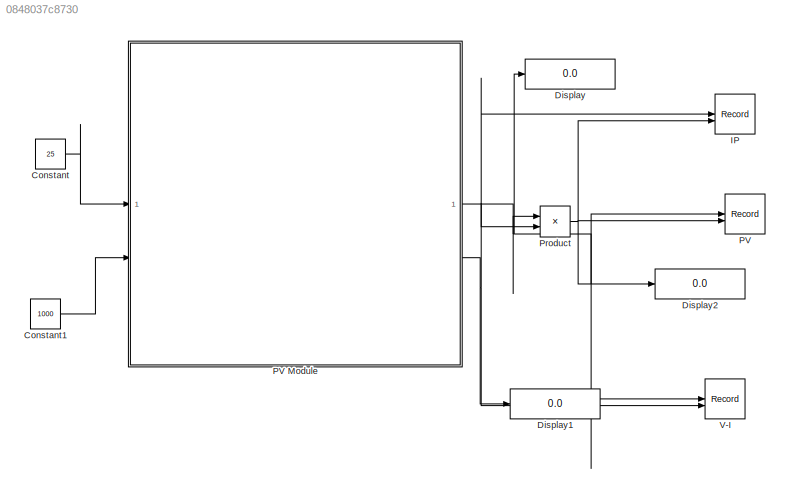
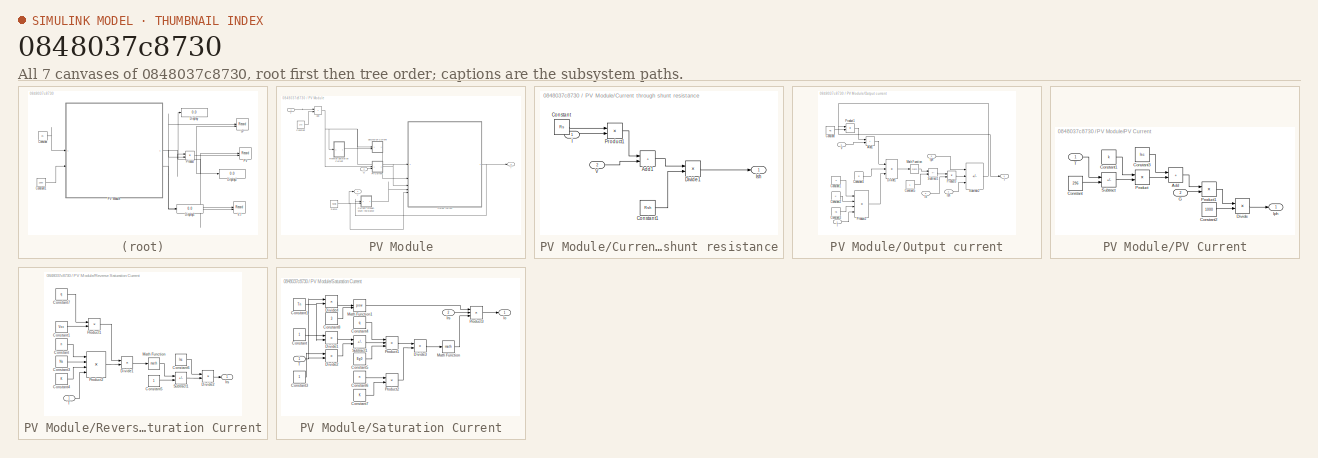
[diagram: thumbnail index - all 7 canvases of the model, root first then tree order]
MODEL slx_0848037c8730
KIND model
CONFIG AbsTol = auto
CONFIG EnableMultiTasking = off
CONFIG FixedStep = auto
CONFIG InitFcn = k=0.0032;\nq=1.6*10^-19;\nK=1.38*10^-23;\nn=1.3;\nEg0=1.38e-23;\nRs=0.221;\nRsh=415.405;\nTn=298;\nVoc=32.9;\nIsc=8.21;\nNs=54;
CONFIG MaxStep = auto
CONFIG MinStep = auto
CONFIG RelTol = 1e-3
CONFIG SampleTimeConstraint = Unconstrained
CONFIG SolverName = VariableStepAuto
CONFIG StartTime = 0.0
CONFIG StopTime = 3.3
BLOCK [Constant] Constant
  Value = 25
BLOCK [Constant] Constant1
  Value = 1000
BLOCK [Display] Display
  Decimation = 1
BLOCK [Display] Display1
  Decimation = 1
BLOCK [Display] Display2
  Decimation = 1
BLOCK [Record] IP
  CompatibilityTag = XY
  FileSettingsInternal = {"entries":[{"content":{"excelSettings":{"content":{},"type":"Streamout.ExcelSettings"}},"type":"Streamout.FileSettingStorage","uuid":""}],"packageUris":["http:\/\/schema.mathworks.com\/mf0\/streamout_blocks\/R2020a"],"version":"1.0"}  <repeated x3 — deduplicated; at blocks: IP, PV, V-I>
  Layout = [1 1]
  SignalsInternal = {"entries":[{"content":{"signals":[{"content":{"blockPath":[],"dimensions":[1],"domain":"","lineColor":"#77ac30","plots":[1],"port":1,"sid":[""],"signalID":35,"signalName":"PV Module:2"},"type":"RecordBlkView.Signal","uuid":""},{"content":{"blockPath":[],"dimensions":[1],"domain":"","lineColor":"#4dbeee","plots":[1],"port":2,"sid":[""],"signalID":39,"signalName":"Product"},"type":"RecordBlkView.Si...<+162ch>
  VisualizationBindings = {"xyplotplugin":{"info":[{"series":[{"bindingParametersList":[{"parameter":"X-Axis","signalID":35,"signalName":"PV Module:2"},{"parameter":"Y-Axis","signalID":39,"signalName":"Product"}],"seriesID":19355}],"subplotID":1}]}}
  st = -1
BLOCK [Record] PV
  CompatibilityTag = XY
  Layout = [1 1]
  SignalsInternal = {"entries":[{"content":{"signals":[{"content":{"blockPath":[],"dimensions":[1],"domain":"","lineColor":"#77ac30","plots":[1],"port":1,"sid":[""],"signalID":43,"signalName":"PV Module:1"},"type":"RecordBlkView.Signal","uuid":""},{"content":{"blockPath":[],"dimensions":[1],"domain":"","lineColor":"#4dbeee","plots":[1],"port":2,"sid":[""],"signalID":47,"signalName":"Product"},"type":"RecordBlkView.Si...<+162ch>
  VisualizationBindings = {"xyplotplugin":{"info":[{"series":[{"bindingParametersList":[{"parameter":"X-Axis","signalID":43,"signalName":"PV Module:1"},{"parameter":"Y-Axis","signalID":47,"signalName":"Product"}],"seriesID":25385}],"subplotID":1}]}}
  st = -1
BLOCK [SubSystem] PV Module
BLOCK [Sum] PV Module/Add
  IconShape = rectangular
BLOCK [Constant] PV Module/Constant
  Value = 273
BLOCK [SubSystem] PV Module/Current through shunt resistance
BLOCK [Sum] PV Module/Current through shunt resistance/Add1
  IconShape = rectangular
BLOCK [Constant] PV Module/Current through shunt resistance/Constant
  Value = Rs
BLOCK [Constant] PV Module/Current through shunt resistance/Constant1
  Value = Rsh
BLOCK [Product] PV Module/Current through shunt resistance/Divide1
  Inputs = */
BLOCK [Inport] PV Module/Current through shunt resistance/I
BLOCK [Outport] PV Module/Current through shunt resistance/Ish
BLOCK [Product] PV Module/Current through shunt resistance/Product1
BLOCK [Inport] PV Module/Current through shunt resistance/V
  Port = 2
BLOCK [Inport] PV Module/G
  Port = 2
BLOCK [Outport] PV Module/I
  Port = 2
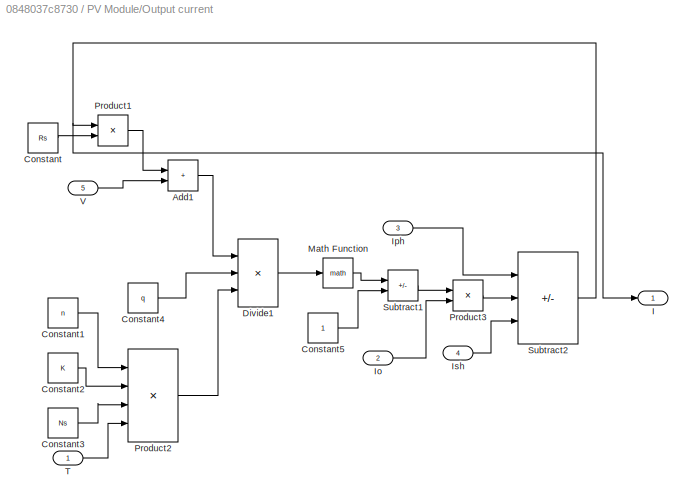
BLOCK [SubSystem] PV Module/Output current
BLOCK [Sum] PV Module/Output current/Add1
  IconShape = rectangular
BLOCK [Constant] PV Module/Output current/Constant
  Value = Rs
BLOCK [Constant] PV Module/Output current/Constant1
  Value = n
BLOCK [Constant] PV Module/Output current/Constant2
  Value = K
BLOCK [Constant] PV Module/Output current/Constant3
  Value = Ns
BLOCK [Constant] PV Module/Output current/Constant4
  Value = q
BLOCK [Constant] PV Module/Output current/Constant5
BLOCK [Product] PV Module/Output current/Divide1
  Inputs = **/
BLOCK [Outport] PV Module/Output current/I
BLOCK [Inport] PV Module/Output current/Io
  Port = 2
BLOCK [Inport] PV Module/Output current/Iph
  Port = 3
BLOCK [Inport] PV Module/Output current/Ish
  Port = 4
BLOCK [Math] PV Module/Output current/Math Function
BLOCK [Product] PV Module/Output current/Product1
BLOCK [Product] PV Module/Output current/Product2
  Inputs = 4
BLOCK [Product] PV Module/Output current/Product3
BLOCK [Sum] PV Module/Output current/Subtract1
  IconShape = rectangular
  Inputs = +-
BLOCK [Sum] PV Module/Output current/Subtract2
  IconShape = rectangular
  Inputs = +--
BLOCK [Inport] PV Module/Output current/T
BLOCK [Inport] PV Module/Output current/V
  Port = 5
BLOCK [SubSystem] PV Module/PV Current
BLOCK [Sum] PV Module/PV Current/Add
  IconShape = rectangular
BLOCK [Constant] PV Module/PV Current/Constant
  Value = 296
BLOCK [Constant] PV Module/PV Current/Constant1
  Value = k
BLOCK [Constant] PV Module/PV Current/Constant2
  Value = 1000
BLOCK [Constant] PV Module/PV Current/Constant3
  Value = Isc
BLOCK [Product] PV Module/PV Current/Divide
  Inputs = */
BLOCK [Inport] PV Module/PV Current/G
  Port = 2
BLOCK [Outport] PV Module/PV Current/Iph
BLOCK [Product] PV Module/PV Current/Product
BLOCK [Product] PV Module/PV Current/Product1
BLOCK [Sum] PV Module/PV Current/Subtract
  IconShape = rectangular
  Inputs = +-
BLOCK [Inport] PV Module/PV Current/T
BLOCK [Reference] PV Module/Ramp  REF=simulink/Sources/Ramp
  SourceBlock = simulink/Sources/Ramp
  SourceType = Ramp
BLOCK [SubSystem] PV Module/Reverse Saturation Current
BLOCK [Constant] PV Module/Reverse Saturation Current/Constant
  Value = n
BLOCK [Constant] PV Module/Reverse Saturation Current/Constant1
  Value = Voc
BLOCK [Constant] PV Module/Reverse Saturation Current/Constant3
  Value = Ns
BLOCK [Constant] PV Module/Reverse Saturation Current/Constant4
  Value = K
BLOCK [Constant] PV Module/Reverse Saturation Current/Constant5
BLOCK [Constant] PV Module/Reverse Saturation Current/Constant6
  Value = Isc
BLOCK [Constant] PV Module/Reverse Saturation Current/Constant7
  Value = q
BLOCK [Product] PV Module/Reverse Saturation Current/Divide1
  Inputs = */
BLOCK [Product] PV Module/Reverse Saturation Current/Divide2
  Inputs = */
BLOCK [Outport] PV Module/Reverse Saturation Current/Irs
BLOCK [Math] PV Module/Reverse Saturation Current/Math Function
BLOCK [Product] PV Module/Reverse Saturation Current/Product1
BLOCK [Product] PV Module/Reverse Saturation Current/Product2
  Inputs = 4
BLOCK [Sum] PV Module/Reverse Saturation Current/Subtract1
  IconShape = rectangular
  Inputs = +-
BLOCK [Inport] PV Module/Reverse Saturation Current/T
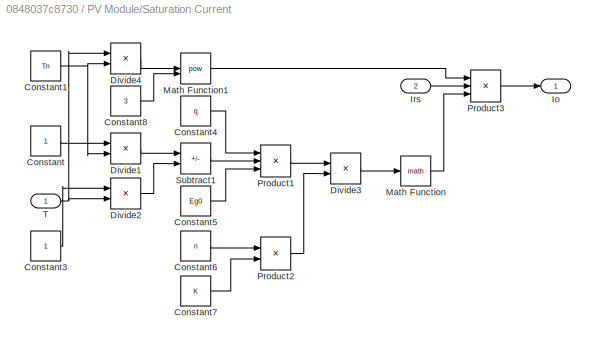
BLOCK [SubSystem] PV Module/Saturation Current
BLOCK [Constant] PV Module/Saturation Current/Constant
BLOCK [Constant] PV Module/Saturation Current/Constant1
  Value = Tn
BLOCK [Constant] PV Module/Saturation Current/Constant3
BLOCK [Constant] PV Module/Saturation Current/Constant4
  Value = q
BLOCK [Constant] PV Module/Saturation Current/Constant5
  Value = Eg0
BLOCK [Constant] PV Module/Saturation Current/Constant6
  Value = n
BLOCK [Constant] PV Module/Saturation Current/Constant7
  Value = K
BLOCK [Constant] PV Module/Saturation Current/Constant8
  Value = 3
BLOCK [Product] PV Module/Saturation Current/Divide1
  Inputs = */
BLOCK [Product] PV Module/Saturation Current/Divide2
  Inputs = */
BLOCK [Product] PV Module/Saturation Current/Divide3
  Inputs = */
BLOCK [Product] PV Module/Saturation Current/Divide4
  Inputs = */
BLOCK [Outport] PV Module/Saturation Current/Io
BLOCK [Inport] PV Module/Saturation Current/Irs
  Port = 2
BLOCK [Math] PV Module/Saturation Current/Math Function
BLOCK [Math] PV Module/Saturation Current/Math Function1
  Operator = pow
BLOCK [Product] PV Module/Saturation Current/Product1
  Inputs = 3
BLOCK [Product] PV Module/Saturation Current/Product2
BLOCK [Product] PV Module/Saturation Current/Product3
  Inputs = 3
BLOCK [Sum] PV Module/Saturation Current/Subtract1
  IconShape = rectangular
  Inputs = +-
BLOCK [Inport] PV Module/Saturation Current/T
BLOCK [Inport] PV Module/T
BLOCK [Outport] PV Module/V
BLOCK [Product] Product
BLOCK [Record] V-I
  CompatibilityTag = XY
  Layout = [1 1]
  SignalsInternal = {"entries":[{"content":{"signals":[{"content":{"blockPath":[],"dimensions":[1],"domain":"","lineColor":"#a2142f","plots":[1],"port":1,"sid":[""],"signalID":51,"signalName":"PV Module:1"},"type":"RecordBlkView.Signal","uuid":""},{"content":{"blockPath":[],"dimensions":[1],"domain":"","lineColor":"#139fff","plots":[1],"port":2,"sid":[""],"signalID":55,"signalName":"PV Module:2"},"type":"RecordBlkVie...<+166ch>
  VisualizationBindings = {"xyplotplugin":{"info":[{"series":[{"bindingParametersList":[{"parameter":"Y-Axis","signalID":55,"signalName":"PV Module:2"},{"parameter":"X-Axis","signalID":51,"signalName":"PV Module:1"}],"seriesID":21075}],"subplotID":1}]}}
  st = -1
LINE Constant1:1 -> PV Module:2
LINE Constant:1 -> PV Module:1
NET PV Module/Add:1 -> PV Module/Output current:1, PV Module/PV Current:1, PV Module/Reverse Saturation Current:1, PV Module/Saturation Current:1
LINE PV Module/Constant:1 -> PV Module/Add:2
LINE PV Module/Current through shunt resistance/Add1:1 -> PV Module/Current through shunt resistance/Divide1:1
LINE PV Module/Current through shunt resistance/Constant1:1 -> PV Module/Current through shunt resistance/Divide1:2
LINE PV Module/Current through shunt resistance/Constant:1 -> PV Module/Current through shunt resistance/Product1:1
LINE PV Module/Current through shunt resistance/Divide1:1 -> PV Module/Current through shunt resistance/Ish:1
LINE PV Module/Current through shunt resistance/I:1 -> PV Module/Current through shunt resistance/Product1:2
LINE PV Module/Current through shunt resistance/Product1:1 -> PV Module/Current through shunt resistance/Add1:1
LINE PV Module/Current through shunt resistance/V:1 -> PV Module/Current through shunt resistance/Add1:2
LINE PV Module/Current through shunt resistance:1 -> PV Module/Output current:4
LINE PV Module/G:1 -> PV Module/PV Current:2
LINE PV Module/Output current/Add1:1 -> PV Module/Output current/Divide1:1
LINE PV Module/Output current/Constant1:1 -> PV Module/Output current/Product2:1
LINE PV Module/Output current/Constant2:1 -> PV Module/Output current/Product2:2
LINE PV Module/Output current/Constant3:1 -> PV Module/Output current/Product2:3
LINE PV Module/Output current/Constant4:1 -> PV Module/Output current/Divide1:2
LINE PV Module/Output current/Constant5:1 -> PV Module/Output current/Subtract1:2
LINE PV Module/Output current/Constant:1 -> PV Module/Output current/Product1:2
LINE PV Module/Output current/Divide1:1 -> PV Module/Output current/Math Function:1
LINE PV Module/Output current/Io:1 -> PV Module/Output current/Product3:2
LINE PV Module/Output current/Iph:1 -> PV Module/Output current/Subtract2:1
LINE PV Module/Output current/Ish:1 -> PV Module/Output current/Subtract2:3
LINE PV Module/Output current/Math Function:1 -> PV Module/Output current/Subtract1:1
LINE PV Module/Output current/Product1:1 -> PV Module/Output current/Add1:1
LINE PV Module/Output current/Product2:1 -> PV Module/Output current/Divide1:3
LINE PV Module/Output current/Product3:1 -> PV Module/Output current/Subtract2:2
LINE PV Module/Output current/Subtract1:1 -> PV Module/Output current/Product3:1
NET PV Module/Output current/Subtract2:1 -> PV Module/Output current/I:1, PV Module/Output current/Product1:1
LINE PV Module/Output current/T:1 -> PV Module/Output current/Product2:4
LINE PV Module/Output current/V:1 -> PV Module/Output current/Add1:2
NET PV Module/Output current:1 -> PV Module/Current through shunt resistance:1, PV Module/I:1
LINE PV Module/PV Current/Add:1 -> PV Module/PV Current/Product1:1
LINE PV Module/PV Current/Constant1:1 -> PV Module/PV Current/Product:1
LINE PV Module/PV Current/Constant2:1 -> PV Module/PV Current/Divide:2
LINE PV Module/PV Current/Constant3:1 -> PV Module/PV Current/Add:1
LINE PV Module/PV Current/Constant:1 -> PV Module/PV Current/Subtract:2
LINE PV Module/PV Current/Divide:1 -> PV Module/PV Current/Iph:1
LINE PV Module/PV Current/G:1 -> PV Module/PV Current/Product1:2
LINE PV Module/PV Current/Product1:1 -> PV Module/PV Current/Divide:1
LINE PV Module/PV Current/Product:1 -> PV Module/PV Current/Add:2
LINE PV Module/PV Current/Subtract:1 -> PV Module/PV Current/Product:2
LINE PV Module/PV Current/T:1 -> PV Module/PV Current/Subtract:1
LINE PV Module/PV Current:1 -> PV Module/Output current:3
NET PV Module/Ramp:1 -> PV Module/Current through shunt resistance:2, PV Module/Output current:5, PV Module/V:1
LINE PV Module/Reverse Saturation Current/Constant1:1 -> PV Module/Reverse Saturation Current/Product1:2
LINE PV Module/Reverse Saturation Current/Constant3:1 -> PV Module/Reverse Saturation Current/Product2:2
LINE PV Module/Reverse Saturation Current/Constant4:1 -> PV Module/Reverse Saturation Current/Product2:3
LINE PV Module/Reverse Saturation Current/Constant5:1 -> PV Module/Reverse Saturation Current/Subtract1:2
LINE PV Module/Reverse Saturation Current/Constant6:1 -> PV Module/Reverse Saturation Current/Divide2:1
LINE PV Module/Reverse Saturation Current/Constant7:1 -> PV Module/Reverse Saturation Current/Product1:1
LINE PV Module/Reverse Saturation Current/Constant:1 -> PV Module/Reverse Saturation Current/Product2:1
LINE PV Module/Reverse Saturation Current/Divide1:1 -> PV Module/Reverse Saturation Current/Math Function:1
LINE PV Module/Reverse Saturation Current/Divide2:1 -> PV Module/Reverse Saturation Current/Irs:1
LINE PV Module/Reverse Saturation Current/Math Function:1 -> PV Module/Reverse Saturation Current/Subtract1:1
LINE PV Module/Reverse Saturation Current/Product1:1 -> PV Module/Reverse Saturation Current/Divide1:1
LINE PV Module/Reverse Saturation Current/Product2:1 -> PV Module/Reverse Saturation Current/Divide1:2
LINE PV Module/Reverse Saturation Current/Subtract1:1 -> PV Module/Reverse Saturation Current/Divide2:2
LINE PV Module/Reverse Saturation Current/T:1 -> PV Module/Reverse Saturation Current/Product2:4
LINE PV Module/Reverse Saturation Current:1 -> PV Module/Saturation Current:2
NET PV Module/Saturation Current/Constant1:1 -> PV Module/Saturation Current/Divide1:2, PV Module/Saturation Current/Divide4:2
LINE PV Module/Saturation Current/Constant3:1 -> PV Module/Saturation Current/Divide2:1
LINE PV Module/Saturation Current/Constant4:1 -> PV Module/Saturation Current/Product1:1
LINE PV Module/Saturation Current/Constant5:1 -> PV Module/Saturation Current/Product1:3
LINE PV Module/Saturation Current/Constant6:1 -> PV Module/Saturation Current/Product2:1
LINE PV Module/Saturation Current/Constant7:1 -> PV Module/Saturation Current/Product2:2
LINE PV Module/Saturation Current/Constant8:1 -> PV Module/Saturation Current/Math Function1:2
LINE PV Module/Saturation Current/Constant:1 -> PV Module/Saturation Current/Divide1:1
LINE PV Module/Saturation Current/Divide1:1 -> PV Module/Saturation Current/Subtract1:1
LINE PV Module/Saturation Current/Divide2:1 -> PV Module/Saturation Current/Subtract1:2
LINE PV Module/Saturation Current/Divide3:1 -> PV Module/Saturation Current/Math Function:1
LINE PV Module/Saturation Current/Divide4:1 -> PV Module/Saturation Current/Math Function1:1
LINE PV Module/Saturation Current/Irs:1 -> PV Module/Saturation Current/Product3:2
LINE PV Module/Saturation Current/Math Function1:1 -> PV Module/Saturation Current/Product3:1
LINE PV Module/Saturation Current/Math Function:1 -> PV Module/Saturation Current/Product3:3
LINE PV Module/Saturation Current/Product1:1 -> PV Module/Saturation Current/Divide3:1
LINE PV Module/Saturation Current/Product2:1 -> PV Module/Saturation Current/Divide3:2
LINE PV Module/Saturation Current/Product3:1 -> PV Module/Saturation Current/Io:1
LINE PV Module/Saturation Current/Subtract1:1 -> PV Module/Saturation Current/Product1:2
NET PV Module/Saturation Current/T:1 -> PV Module/Saturation Current/Divide2:2, PV Module/Saturation Current/Divide4:1
LINE PV Module/Saturation Current:1 -> PV Module/Output current:2
LINE PV Module/T:1 -> PV Module/Add:1
NET PV Module:1 -> Display:1, PV:1, Product:1, V-I:1
NET PV Module:2 -> Display1:1, IP:1, Product:2, V-I:2
NET Product:1 -> Display2:1, IP:2, PV:2
note: NET lines group one-source signal fan-out (src -> all destinations, sorted); 1:1 wires keep LINE
